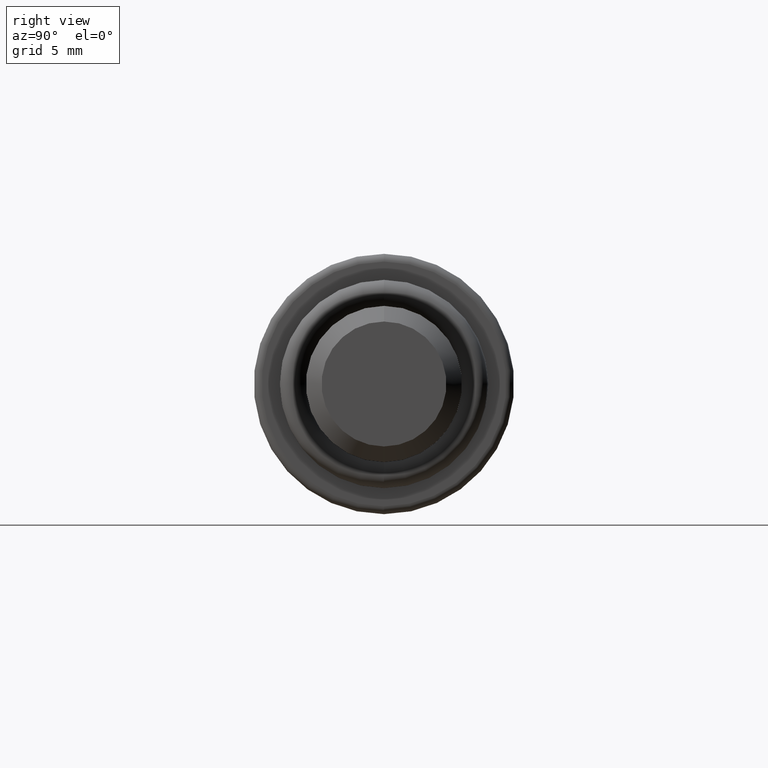
[diagram: clean part render]
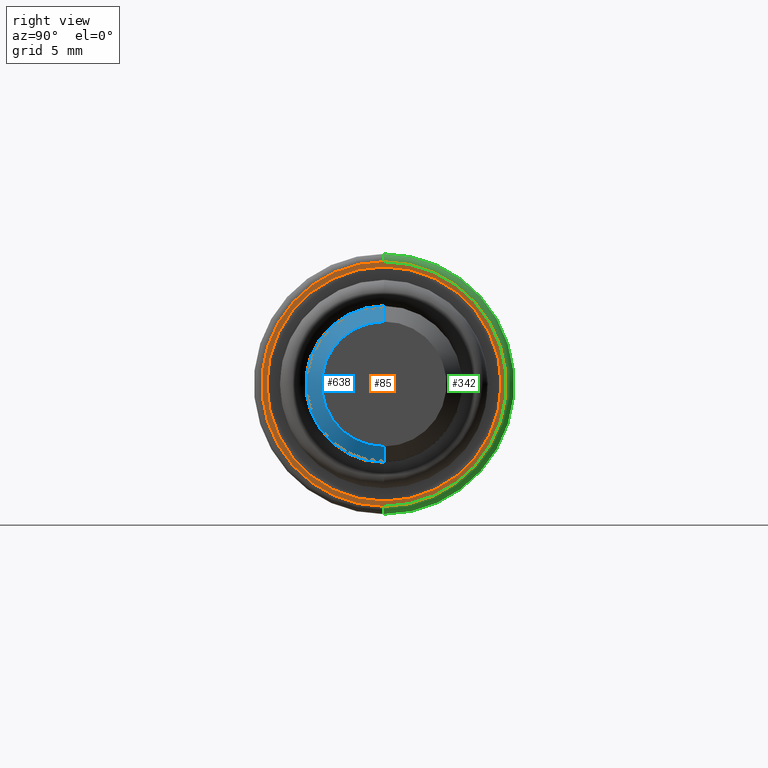
[diagram: same view with three faces highlighted in distinct colors, each labeled with its STEP entity id]
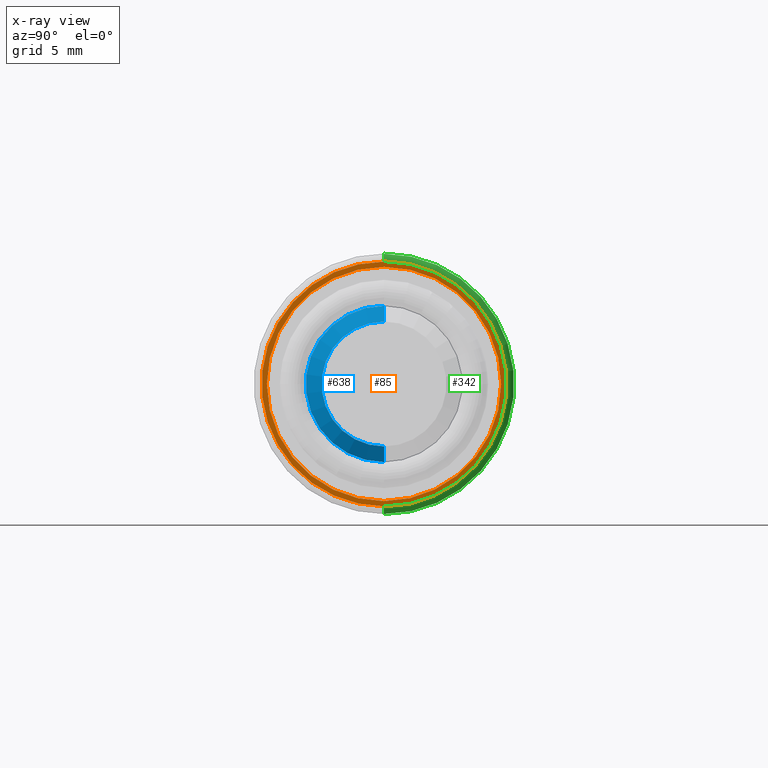
[diagram: x-ray of the same camera — body ghosted, the three highlighted faces saturated]
A machine part, right view with three faces highlighted in distinct colors.
The next image is the same camera in x-ray (body ghosted, the three faces saturated) — at least one of them is partly hidden behind the body in this view.
Their STEP definitions:

[orange] entity #85 — the highlighted planar face has unit normal (1, 0, 0).
#18 = FACE_OUTER_BOUND ( 'NONE', #46, .T. ) ;
#43 = PLANE ( 'NONE',  #504 ) ;
#46 = EDGE_LOOP ( 'NONE', ( #753, #118 ) ) ;
#49 = DIRECTION ( 'NONE',  ( 1.000000000000000000, 0.0000000000000000000, 0.0000000000000000000 ) ) ;
#54 = VERTEX_POINT ( 'NONE', #640 ) ;
#74 = CARTESIAN_POINT ( 'NONE',  ( 0.0000000000000000000, 0.0000000000000000000, 0.0000000000000000000 ) ) ;
#78 = DIRECTION ( 'NONE',  ( 0.0000000000000000000, 0.0000000000000000000, -1.000000000000000000 ) ) ;
#85 = ADVANCED_FACE ( 'NONE', ( #18, #166 ), #43, .T. ) ;
#105 = DIRECTION ( 'NONE',  ( 0.0000000000000000000, 0.0000000000000000000, -1.000000000000000000 ) ) ;
#118 = ORIENTED_EDGE ( 'NONE', *, *, #202, .T. ) ;
#124 = CIRCLE ( 'NONE', #711, 4.700000000000000200 ) ;
#126 = DIRECTION ( 'NONE',  ( 1.000000000000000000, 0.0000000000000000000, 0.0000000000000000000 ) ) ;
#147 = VERTEX_POINT ( 'NONE', #534 ) ;
#159 = EDGE_CURVE ( 'NONE', #520, #206, #124, .T. ) ;
#166 = FACE_BOUND ( 'NONE', #346, .T. ) ;
#177 = EDGE_CURVE ( 'NONE', #147, #54, #450, .T. ) ;
#202 = EDGE_CURVE ( 'NONE', #206, #520, #539, .T. ) ;
#206 = VERTEX_POINT ( 'NONE', #693 ) ;
#229 = DIRECTION ( 'NONE',  ( 1.000000000000000000, 0.0000000000000000000, 0.0000000000000000000 ) ) ;
#237 = CARTESIAN_POINT ( 'NONE',  ( 0.0000000000000000000, 0.0000000000000000000, 0.0000000000000000000 ) ) ;
#252 = CARTESIAN_POINT ( 'NONE',  ( 0.0000000000000000000, 0.0000000000000000000, 0.0000000000000000000 ) ) ;
#287 = AXIS2_PLACEMENT_3D ( 'NONE', #727, #537, #78 ) ;
#346 = EDGE_LOOP ( 'NONE', ( #767, #781 ) ) ;
#447 = CARTESIAN_POINT ( 'NONE',  ( 0.0000000000000000000, 0.0000000000000000000, 0.0000000000000000000 ) ) ;
#450 = CIRCLE ( 'NONE', #745, 4.500000000000000000 ) ;
#504 = AXIS2_PLACEMENT_3D ( 'NONE', #252, #589, #765 ) ;
#520 = VERTEX_POINT ( 'NONE', #714 ) ;
#522 = EDGE_CURVE ( 'NONE', #54, #147, #704, .T. ) ;
#534 = CARTESIAN_POINT ( 'NONE',  ( 0.0000000000000000000, 5.510910596163088600E-016, 4.500000000000000000 ) ) ;
#537 = DIRECTION ( 'NONE',  ( 1.000000000000000000, 0.0000000000000000000, 0.0000000000000000000 ) ) ;
#539 = CIRCLE ( 'NONE', #786, 4.700000000000000200 ) ;
#589 = DIRECTION ( 'NONE',  ( 1.000000000000000000, 0.0000000000000000000, 0.0000000000000000000 ) ) ;
#631 = DIRECTION ( 'NONE',  ( 0.0000000000000000000, 0.0000000000000000000, -1.000000000000000000 ) ) ;
#640 = CARTESIAN_POINT ( 'NONE',  ( 0.0000000000000000000, 0.0000000000000000000, -4.500000000000000000 ) ) ;
#693 = CARTESIAN_POINT ( 'NONE',  ( 0.0000000000000000000, 5.939536975864663000E-016, 4.700000000000000200 ) ) ;
#704 = CIRCLE ( 'NONE', #287, 4.500000000000000000 ) ;
#711 = AXIS2_PLACEMENT_3D ( 'NONE', #237, #229, #631 ) ;
#714 = CARTESIAN_POINT ( 'NONE',  ( 0.0000000000000000000, 0.0000000000000000000, -4.700000000000000200 ) ) ;
#727 = CARTESIAN_POINT ( 'NONE',  ( 0.0000000000000000000, 0.0000000000000000000, 0.0000000000000000000 ) ) ;
#745 = AXIS2_PLACEMENT_3D ( 'NONE', #74, #126, #105 ) ;
#753 = ORIENTED_EDGE ( 'NONE', *, *, #159, .T. ) ;
#765 = DIRECTION ( 'NONE',  ( 0.0000000000000000000, 0.0000000000000000000, -1.000000000000000000 ) ) ;
#767 = ORIENTED_EDGE ( 'NONE', *, *, #522, .F. ) ;
#775 = DIRECTION ( 'NONE',  ( 0.0000000000000000000, 0.0000000000000000000, -1.000000000000000000 ) ) ;
#781 = ORIENTED_EDGE ( 'NONE', *, *, #177, .F. ) ;
#786 = AXIS2_PLACEMENT_3D ( 'NONE', #447, #49, #775 ) ;

[blue] entity #638 — the highlighted conical surface has half-angle 45 deg.
#2 = VECTOR ( 'NONE', #228, 999.9999999999998900 ) ;
#26 = FACE_OUTER_BOUND ( 'NONE', #773, .T. ) ;
#50 = CONICAL_SURFACE ( 'NONE', #718, 2.399999999999995900, 0.7853981633974465000 ) ;
#65 = CARTESIAN_POINT ( 'NONE',  ( 19.39999999999999500, 3.673940397442060400E-016, -3.000000000000000400 ) ) ;
#139 = DIRECTION ( 'NONE',  ( 0.0000000000000000000, 0.0000000000000000000, -1.000000000000000000 ) ) ;
#152 = VECTOR ( 'NONE', #805, 999.9999999999998900 ) ;
#154 = CARTESIAN_POINT ( 'NONE',  ( 19.39999999999999500, 0.0000000000000000000, 0.0000000000000000000 ) ) ;
#163 = ORIENTED_EDGE ( 'NONE', *, *, #755, .F. ) ;
#169 = VERTEX_POINT ( 'NONE', #455 ) ;
#183 = AXIS2_PLACEMENT_3D ( 'NONE', #154, #285, #223 ) ;
#197 = ORIENTED_EDGE ( 'NONE', *, *, #548, .T. ) ;
#223 = DIRECTION ( 'NONE',  ( 0.0000000000000000000, 0.0000000000000000000, -1.000000000000000000 ) ) ;
#228 = DIRECTION ( 'NONE',  ( -0.7071067811865489100, 0.0000000000000000000, 0.7071067811865462400 ) ) ;
#248 = VERTEX_POINT ( 'NONE', #632 ) ;
#277 = CARTESIAN_POINT ( 'NONE',  ( 20.00000000000000000, 0.0000000000000000000, 0.0000000000000000000 ) ) ;
#285 = DIRECTION ( 'NONE',  ( -1.000000000000000000, 0.0000000000000000000, 0.0000000000000000000 ) ) ;
#289 = DIRECTION ( 'NONE',  ( 0.0000000000000000000, 0.0000000000000000000, 1.000000000000000000 ) ) ;
#298 = CARTESIAN_POINT ( 'NONE',  ( 20.00000000000000000, 0.0000000000000000000, 2.399999999999995900 ) ) ;
#300 = ORIENTED_EDGE ( 'NONE', *, *, #649, .F. ) ;
#311 = VERTEX_POINT ( 'NONE', #298 ) ;
#332 = AXIS2_PLACEMENT_3D ( 'NONE', #778, #675, #139 ) ;
#336 = LINE ( 'NONE', #492, #2 ) ;
#351 = LINE ( 'NONE', #788, #152 ) ;
#455 = CARTESIAN_POINT ( 'NONE',  ( 19.39999999999999500, 0.0000000000000000000, 3.000000000000000400 ) ) ;
#471 = DIRECTION ( 'NONE',  ( -1.000000000000000000, 0.0000000000000000000, 0.0000000000000000000 ) ) ;
#492 = CARTESIAN_POINT ( 'NONE',  ( 20.00000000000000000, 0.0000000000000000000, 2.399999999999995900 ) ) ;
#496 = CIRCLE ( 'NONE', #332, 2.399999999999995900 ) ;
#548 = EDGE_CURVE ( 'NONE', #311, #169, #336, .T. ) ;
#560 = EDGE_CURVE ( 'NONE', #311, #248, #496, .T. ) ;
#613 = VERTEX_POINT ( 'NONE', #65 ) ;
#632 = CARTESIAN_POINT ( 'NONE',  ( 20.00000000000000000, 3.306546357697851300E-016, -2.399999999999995900 ) ) ;
#638 = ADVANCED_FACE ( 'NONE', ( #26 ), #50, .T. ) ;
#649 = EDGE_CURVE ( 'NONE', #613, #169, #762, .T. ) ;
#665 = ORIENTED_EDGE ( 'NONE', *, *, #560, .F. ) ;
#675 = DIRECTION ( 'NONE',  ( 1.000000000000000000, 0.0000000000000000000, 0.0000000000000000000 ) ) ;
#718 = AXIS2_PLACEMENT_3D ( 'NONE', #277, #471, #289 ) ;
#755 = EDGE_CURVE ( 'NONE', #248, #613, #351, .T. ) ;
#762 = CIRCLE ( 'NONE', #183, 3.000000000000000400 ) ;
#773 = EDGE_LOOP ( 'NONE', ( #163, #665, #197, #300 ) ) ;
#778 = CARTESIAN_POINT ( 'NONE',  ( 20.00000000000000000, 0.0000000000000000000, 0.0000000000000000000 ) ) ;
#788 = CARTESIAN_POINT ( 'NONE',  ( 20.00000000000000000, 2.939152317953642700E-016, -2.399999999999995900 ) ) ;
#805 = DIRECTION ( 'NONE',  ( -0.7071067811865489100, 8.659560562354915600E-017, -0.7071067811865462400 ) ) ;

[green] entity #342 — the highlighted toroidal blend (fillet) surface has major radius 4.7 mm and minor (blend) radius 0.3 mm.
#4 = CARTESIAN_POINT ( 'NONE',  ( -0.2999999999999999300, 0.0000000000000000000, -4.700000000000000200 ) ) ;
#119 = EDGE_CURVE ( 'NONE', #171, #520, #804, .T. ) ;
#120 = ORIENTED_EDGE ( 'NONE', *, *, #119, .F. ) ;
#124 = CIRCLE ( 'NONE', #711, 4.700000000000000200 ) ;
#151 = CIRCLE ( 'NONE', #611, 5.000000000000000000 ) ;
#159 = EDGE_CURVE ( 'NONE', #520, #206, #124, .T. ) ;
#161 = CARTESIAN_POINT ( 'NONE',  ( -0.2999999999999999300, 5.755839955992559700E-016, 4.700000000000000200 ) ) ;
#171 = VERTEX_POINT ( 'NONE', #691 ) ;
#184 = ORIENTED_EDGE ( 'NONE', *, *, #817, .T. ) ;
#189 = DIRECTION ( 'NONE',  ( 1.000000000000000000, 0.0000000000000000000, 0.0000000000000000000 ) ) ;
#192 = TOROIDAL_SURFACE ( 'NONE', #254, 4.700000000000000200, 0.2999999999999999900 ) ;
#206 = VERTEX_POINT ( 'NONE', #693 ) ;
#229 = DIRECTION ( 'NONE',  ( 1.000000000000000000, 0.0000000000000000000, 0.0000000000000000000 ) ) ;
#231 = AXIS2_PLACEMENT_3D ( 'NONE', #4, #296, #376 ) ;
#237 = CARTESIAN_POINT ( 'NONE',  ( 0.0000000000000000000, 0.0000000000000000000, 0.0000000000000000000 ) ) ;
#254 = AXIS2_PLACEMENT_3D ( 'NONE', #582, #189, #696 ) ;
#295 = DIRECTION ( 'NONE',  ( 0.0000000000000000000, 1.000000000000000000, -1.224646799147353200E-016 ) ) ;
#296 = DIRECTION ( 'NONE',  ( 0.0000000000000000000, -1.000000000000000000, 0.0000000000000000000 ) ) ;
#326 = DIRECTION ( 'NONE',  ( 0.0000000000000000000, 0.0000000000000000000, -1.000000000000000000 ) ) ;
#329 = DIRECTION ( 'NONE',  ( -1.000000000000000000, -0.0000000000000000000, -0.0000000000000000000 ) ) ;
#342 = ADVANCED_FACE ( 'NONE', ( #372 ), #192, .T. ) ;
#372 = FACE_OUTER_BOUND ( 'NONE', #595, .T. ) ;
#376 = DIRECTION ( 'NONE',  ( 0.0000000000000000000, 0.0000000000000000000, -1.000000000000000000 ) ) ;
#413 = DIRECTION ( 'NONE',  ( 0.0000000000000000000, 1.224646799147353200E-016, 1.000000000000000000 ) ) ;
#429 = EDGE_CURVE ( 'NONE', #637, #171, #151, .T. ) ;
#457 = ORIENTED_EDGE ( 'NONE', *, *, #429, .F. ) ;
#459 = CARTESIAN_POINT ( 'NONE',  ( -0.2999999999999999300, 0.0000000000000000000, 0.0000000000000000000 ) ) ;
#520 = VERTEX_POINT ( 'NONE', #714 ) ;
#569 = ORIENTED_EDGE ( 'NONE', *, *, #159, .F. ) ;
#582 = CARTESIAN_POINT ( 'NONE',  ( -0.2999999999999999300, 0.0000000000000000000, 0.0000000000000000000 ) ) ;
#595 = EDGE_LOOP ( 'NONE', ( #457, #184, #569, #120 ) ) ;
#611 = AXIS2_PLACEMENT_3D ( 'NONE', #459, #329, #326 ) ;
#631 = DIRECTION ( 'NONE',  ( 0.0000000000000000000, 0.0000000000000000000, -1.000000000000000000 ) ) ;
#637 = VERTEX_POINT ( 'NONE', #692 ) ;
#642 = CIRCLE ( 'NONE', #785, 0.2999999999999999300 ) ;
#691 = CARTESIAN_POINT ( 'NONE',  ( -0.2999999999999999300, 0.0000000000000000000, -5.000000000000000000 ) ) ;
#692 = CARTESIAN_POINT ( 'NONE',  ( -0.2999999999999999300, 6.123233995736765300E-016, 5.000000000000000000 ) ) ;
#693 = CARTESIAN_POINT ( 'NONE',  ( 0.0000000000000000000, 5.939536975864663000E-016, 4.700000000000000200 ) ) ;
#696 = DIRECTION ( 'NONE',  ( 0.0000000000000000000, 0.0000000000000000000, -1.000000000000000000 ) ) ;
#711 = AXIS2_PLACEMENT_3D ( 'NONE', #237, #229, #631 ) ;
#714 = CARTESIAN_POINT ( 'NONE',  ( 0.0000000000000000000, 0.0000000000000000000, -4.700000000000000200 ) ) ;
#785 = AXIS2_PLACEMENT_3D ( 'NONE', #161, #295, #413 ) ;
#804 = CIRCLE ( 'NONE', #231, 0.2999999999999999300 ) ;
#817 = EDGE_CURVE ( 'NONE', #637, #206, #642, .T. ) ;